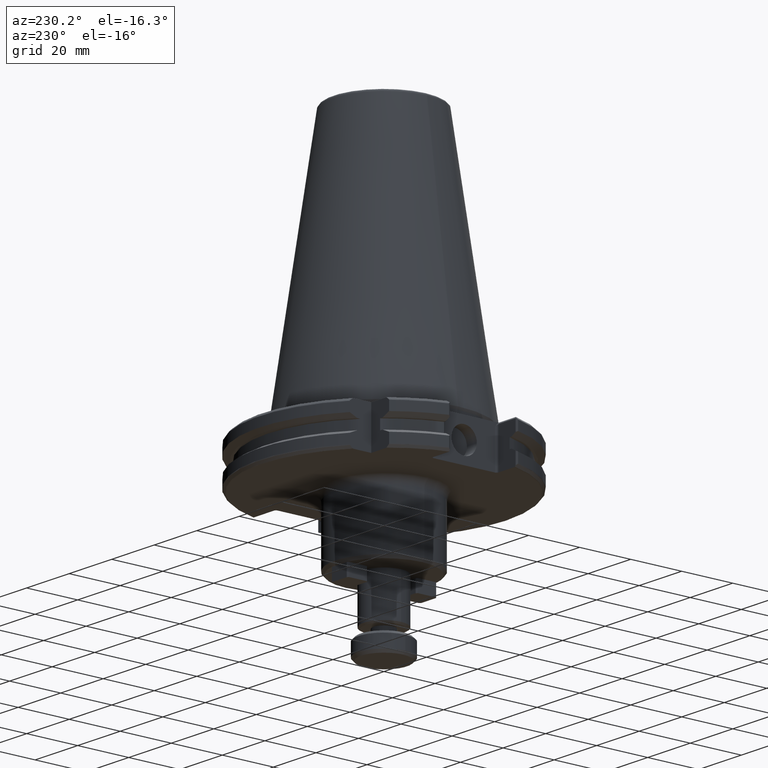
[diagram: clean part render]
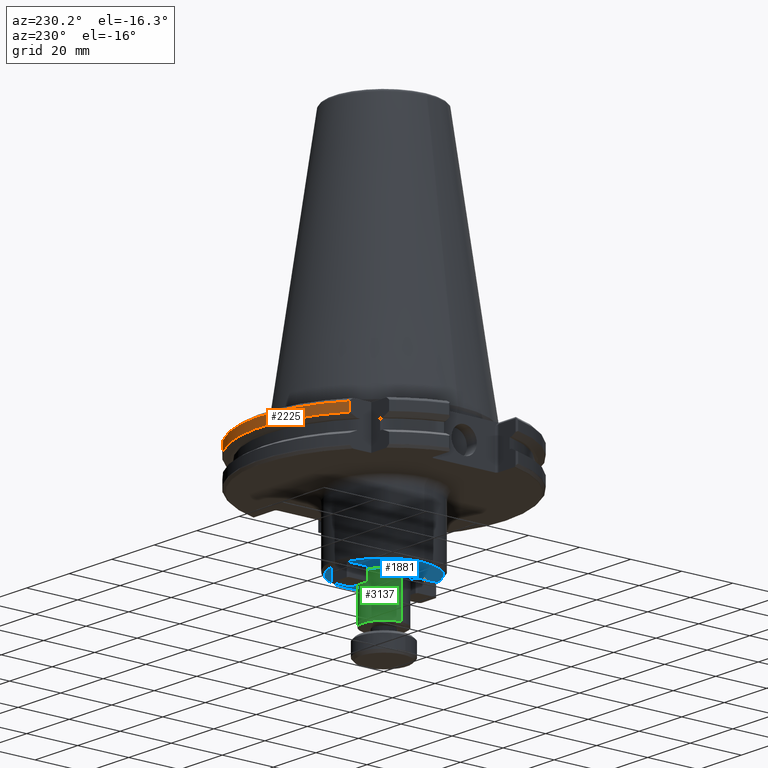
[diagram: same view with three faces highlighted in distinct colors, each labeled with its STEP entity id]
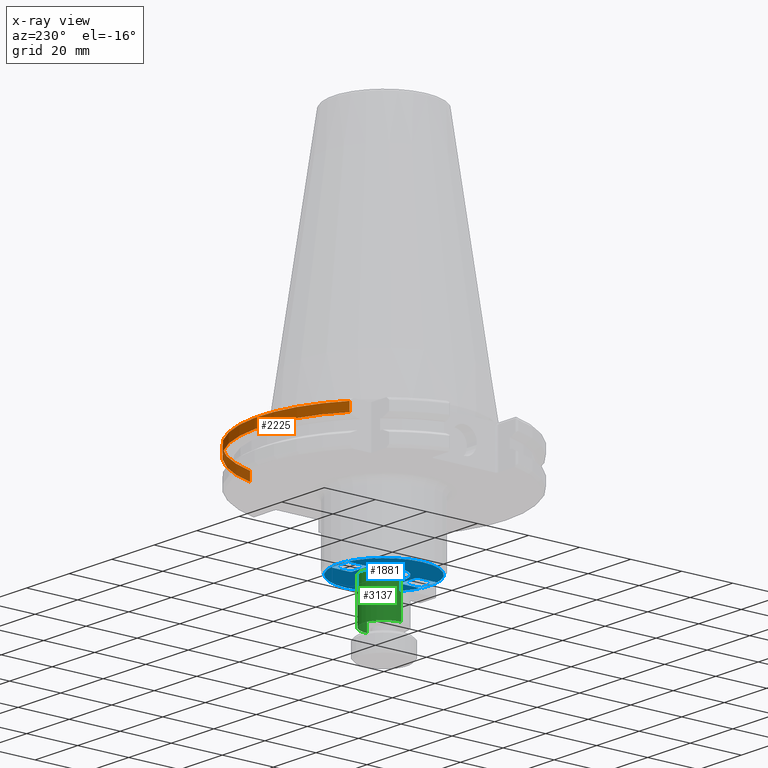
[diagram: x-ray of the same camera — body ghosted, the three highlighted faces saturated]
A machine part, auxiliary view with three faces highlighted in distinct colors.
The next image is the same camera in x-ray (body ghosted, the three faces saturated) — at least one of them is partly hidden behind the body in this view.
Their STEP definitions:

[orange] entity #2225 — the highlighted cylindrical surface (partial cylindrical patch) has radius 48.75 mm, axis along (-0, -0, 1).
#45 = CARTESIAN_POINT ( 'NONE',  ( -29.99999999999999600, 38.42606537234850400, 113.5216080541959500 ) ) ;
#65 = LINE ( 'NONE', #45, #3010 ) ;
#95 = VERTEX_POINT ( 'NONE', #1622 ) ;
#521 = AXIS2_PLACEMENT_3D ( 'NONE', #2851, #1035, #3150 ) ;
#522 = CARTESIAN_POINT ( 'NONE',  ( 0.0000000000000000000, 0.0000000000000000000, -4.365685424949236700 ) ) ;
#868 = DIRECTION ( 'NONE',  ( 1.000000000000000000, 0.0000000000000000000, 0.0000000000000000000 ) ) ;
#937 = DIRECTION ( 'NONE',  ( 0.0000000000000000000, 0.0000000000000000000, -1.000000000000000000 ) ) ;
#1009 = VERTEX_POINT ( 'NONE', #1951 ) ;
#1035 = DIRECTION ( 'NONE',  ( -0.0000000000000000000, -0.0000000000000000000, 1.000000000000000000 ) ) ;
#1087 = DIRECTION ( 'NONE',  ( -0.0000000000000000000, -0.0000000000000000000, 1.000000000000000000 ) ) ;
#1269 = EDGE_LOOP ( 'NONE', ( #2184, #2517, #3626, #2085 ) ) ;
#1325 = FACE_OUTER_BOUND ( 'NONE', #1269, .T. ) ;
#1541 = CARTESIAN_POINT ( 'NONE',  ( 46.87302845420868600, 13.39707817141269600, -4.365685424949236700 ) ) ;
#1622 = CARTESIAN_POINT ( 'NONE',  ( -29.99999999999999600, 38.42606537234850400, -7.852404735808352000 ) ) ;
#1638 = EDGE_CURVE ( 'NONE', #2613, #95, #2447, .T. ) ;
#1851 = CIRCLE ( 'NONE', #3684, 48.75000000000000000 ) ;
#1946 = CYLINDRICAL_SURFACE ( 'NONE', #3568, 48.75000000000000000 ) ;
#1951 = CARTESIAN_POINT ( 'NONE',  ( -29.99999999999999600, 38.42606537234850400, -4.365685424949235800 ) ) ;
#2085 = ORIENTED_EDGE ( 'NONE', *, *, #1638, .T. ) ;
#2184 = ORIENTED_EDGE ( 'NONE', *, *, #3299, .T. ) ;
#2225 = ADVANCED_FACE ( 'NONE', ( #1325 ), #1946, .T. ) ;
#2447 = CIRCLE ( 'NONE', #521, 48.75000000000000000 ) ;
#2517 = ORIENTED_EDGE ( 'NONE', *, *, #2784, .F. ) ;
#2527 = LINE ( 'NONE', #3039, #2654 ) ;
#2613 = VERTEX_POINT ( 'NONE', #3300 ) ;
#2654 = VECTOR ( 'NONE', #937, 1000.000000000000000 ) ;
#2674 = DIRECTION ( 'NONE',  ( -0.0000000000000000000, -0.0000000000000000000, 1.000000000000000000 ) ) ;
#2709 = EDGE_CURVE ( 'NONE', #3382, #2613, #2527, .T. ) ;
#2784 = EDGE_CURVE ( 'NONE', #3382, #1009, #1851, .T. ) ;
#2851 = CARTESIAN_POINT ( 'NONE',  ( 0.0000000000000000000, 0.0000000000000000000, -7.852404735808352000 ) ) ;
#3010 = VECTOR ( 'NONE', #3639, 1000.000000000000000 ) ;
#3039 = CARTESIAN_POINT ( 'NONE',  ( 46.87302845420868600, 13.39707817141269600, 113.5216080541959500 ) ) ;
#3150 = DIRECTION ( 'NONE',  ( 1.000000000000000000, 0.0000000000000000000, 0.0000000000000000000 ) ) ;
#3193 = DIRECTION ( 'NONE',  ( 1.000000000000000000, 0.0000000000000000000, 0.0000000000000000000 ) ) ;
#3299 = EDGE_CURVE ( 'NONE', #95, #1009, #65, .T. ) ;
#3300 = CARTESIAN_POINT ( 'NONE',  ( 46.87302845420868600, 13.39707817141269600, -7.852404735808352000 ) ) ;
#3382 = VERTEX_POINT ( 'NONE', #1541 ) ;
#3472 = CARTESIAN_POINT ( 'NONE',  ( 0.0000000000000000000, 0.0000000000000000000, 113.5216080541959500 ) ) ;
#3568 = AXIS2_PLACEMENT_3D ( 'NONE', #3472, #1087, #3193 ) ;
#3626 = ORIENTED_EDGE ( 'NONE', *, *, #2709, .T. ) ;
#3639 = DIRECTION ( 'NONE',  ( -0.0000000000000000000, -0.0000000000000000000, 1.000000000000000000 ) ) ;
#3684 = AXIS2_PLACEMENT_3D ( 'NONE', #522, #2674, #868 ) ;

[blue] entity #1881 — the highlighted planar face has unit normal (0, 0, -1).
#89 = EDGE_LOOP ( 'NONE', ( #2679, #1226, #2944, #3093, #1421, #2579, #1924, #1107 ) ) ;
#112 = FACE_OUTER_BOUND ( 'NONE', #2059, .T. ) ;
#135 = LINE ( 'NONE', #2282, #3054 ) ;
#151 = DIRECTION ( 'NONE',  ( 0.7071067811865479100, -0.7071067811865472400, -0.0000000000000000000 ) ) ;
#224 = DIRECTION ( 'NONE',  ( -0.7071067811865479100, 0.7071067811865472400, -0.0000000000000000000 ) ) ;
#226 = VERTEX_POINT ( 'NONE', #3602 ) ;
#231 = CARTESIAN_POINT ( 'NONE',  ( 4.000000000000002700, 17.50000000000000000, -45.00000000000000000 ) ) ;
#249 = DIRECTION ( 'NONE',  ( -4.336808689942016700E-016, -1.000000000000000000, 0.0000000000000000000 ) ) ;
#286 = VECTOR ( 'NONE', #2889, 1000.000000000000000 ) ;
#295 = LINE ( 'NONE', #1426, #2391 ) ;
#304 = CARTESIAN_POINT ( 'NONE',  ( -4.000000000000002700, 10.00000000000000000, -45.00000000000000000 ) ) ;
#310 = VECTOR ( 'NONE', #2668, 1000.000000000000000 ) ;
#336 = CARTESIAN_POINT ( 'NONE',  ( 4.000000000000002700, 17.50000000000000000, -45.00000000000000000 ) ) ;
#341 = FACE_BOUND ( 'NONE', #89, .T. ) ;
#370 = FACE_BOUND ( 'NONE', #3833, .T. ) ;
#378 = CARTESIAN_POINT ( 'NONE',  ( -4.000000000000002700, -17.50000000000000000, -45.00000000000000000 ) ) ;
#394 = CARTESIAN_POINT ( 'NONE',  ( -3.500000000000001800, -17.50000000000000000, -45.00000000000000000 ) ) ;
#420 = EDGE_CURVE ( 'NONE', #3836, #2226, #908, .T. ) ;
#457 = CARTESIAN_POINT ( 'NONE',  ( 4.000000000000002700, -10.00000000000000000, -45.00000000000000000 ) ) ;
#488 = CARTESIAN_POINT ( 'NONE',  ( 0.0000000000000000000, -18.00000000000000000, -45.00000000000000000 ) ) ;
#490 = VERTEX_POINT ( 'NONE', #1059 ) ;
#514 = CARTESIAN_POINT ( 'NONE',  ( -3.499999999999998700, -9.500000000000000000, -45.00000000000000000 ) ) ;
#553 = VERTEX_POINT ( 'NONE', #2809 ) ;
#558 = LINE ( 'NONE', #3758, #2361 ) ;
#633 = EDGE_CURVE ( 'NONE', #1213, #2848, #1340, .T. ) ;
#653 = CARTESIAN_POINT ( 'NONE',  ( -4.000000000000002700, 10.00000000000000000, -45.00000000000000000 ) ) ;
#656 = VERTEX_POINT ( 'NONE', #2329 ) ;
#663 = VERTEX_POINT ( 'NONE', #1220 ) ;
#687 = VERTEX_POINT ( 'NONE', #1912 ) ;
#692 = LINE ( 'NONE', #231, #2293 ) ;
#710 = EDGE_CURVE ( 'NONE', #2846, #3496, #558, .T. ) ;
#727 = VECTOR ( 'NONE', #2451, 1000.000000000000000 ) ;
#744 = EDGE_CURVE ( 'NONE', #663, #3134, #2725, .T. ) ;
#746 = EDGE_CURVE ( 'NONE', #663, #1366, #967, .T. ) ;
#747 = CARTESIAN_POINT ( 'NONE',  ( 3.499999999999974700, -9.500000000000000000, -45.00000000000000000 ) ) ;
#749 = VECTOR ( 'NONE', #3651, 1000.000000000000000 ) ;
#754 = VECTOR ( 'NONE', #224, 1000.000000000000000 ) ;
#774 = CARTESIAN_POINT ( 'NONE',  ( -4.000000000000002700, 16.99999999999997500, -45.00000000000000000 ) ) ;
#830 = PLANE ( 'NONE',  #1162 ) ;
#844 = CARTESIAN_POINT ( 'NONE',  ( 8.000000000000000000, 0.0000000000000000000, -45.00000000000000000 ) ) ;
#855 = VERTEX_POINT ( 'NONE', #2687 ) ;
#887 = VECTOR ( 'NONE', #3546, 1000.000000000000100 ) ;
#908 = CIRCLE ( 'NONE', #1451, 18.00000000000000000 ) ;
#910 = ORIENTED_EDGE ( 'NONE', *, *, #633, .T. ) ;
#931 = DIRECTION ( 'NONE',  ( -0.0000000000000000000, -0.0000000000000000000, 1.000000000000000000 ) ) ;
#967 = LINE ( 'NONE', #336, #727 ) ;
#974 = DIRECTION ( 'NONE',  ( -1.000000000000000000, -0.0000000000000000000, -0.0000000000000000000 ) ) ;
#1059 = CARTESIAN_POINT ( 'NONE',  ( 4.000000000000002700, -10.00000000000000000, -45.00000000000000000 ) ) ;
#1060 = VERTEX_POINT ( 'NONE', #3440 ) ;
#1089 = ORIENTED_EDGE ( 'NONE', *, *, #1237, .T. ) ;
#1103 = CARTESIAN_POINT ( 'NONE',  ( 3.499999999999998700, 9.500000000000000000, -45.00000000000000000 ) ) ;
#1104 = ORIENTED_EDGE ( 'NONE', *, *, #2997, .F. ) ;
#1107 = ORIENTED_EDGE ( 'NONE', *, *, #1474, .T. ) ;
#1142 = CARTESIAN_POINT ( 'NONE',  ( 3.500000000000002200, -17.50000000000000000, -45.00000000000000000 ) ) ;
#1162 = AXIS2_PLACEMENT_3D ( 'NONE', #488, #3815, #2932 ) ;
#1213 = VERTEX_POINT ( 'NONE', #844 ) ;
#1220 = CARTESIAN_POINT ( 'NONE',  ( -3.500000000000002200, 17.50000000000000000, -45.00000000000000000 ) ) ;
#1221 = EDGE_CURVE ( 'NONE', #3603, #226, #2267, .T. ) ;
#1226 = ORIENTED_EDGE ( 'NONE', *, *, #2248, .T. ) ;
#1237 = EDGE_CURVE ( 'NONE', #656, #1060, #1871, .T. ) ;
#1271 = VECTOR ( 'NONE', #2199, 1000.000000000000000 ) ;
#1285 = VECTOR ( 'NONE', #2783, 1000.000000000000000 ) ;
#1295 = EDGE_LOOP ( 'NONE', ( #1718, #1089, #1648, #1419, #3287, #1525, #1104, #2258 ) ) ;
#1334 = VERTEX_POINT ( 'NONE', #2991 ) ;
#1340 = CIRCLE ( 'NONE', #2005, 8.000000000000000000 ) ;
#1366 = VERTEX_POINT ( 'NONE', #2145 ) ;
#1419 = ORIENTED_EDGE ( 'NONE', *, *, #710, .T. ) ;
#1421 = ORIENTED_EDGE ( 'NONE', *, *, #746, .F. ) ;
#1426 = CARTESIAN_POINT ( 'NONE',  ( -4.000000000000002700, -17.50000000000000000, -45.00000000000000000 ) ) ;
#1451 = AXIS2_PLACEMENT_3D ( 'NONE', #3132, #2382, #2971 ) ;
#1457 = AXIS2_PLACEMENT_3D ( 'NONE', #2739, #931, #3031 ) ;
#1474 = EDGE_CURVE ( 'NONE', #3251, #1334, #3497, .T. ) ;
#1525 = ORIENTED_EDGE ( 'NONE', *, *, #1221, .T. ) ;
#1530 = EDGE_CURVE ( 'NONE', #3603, #3496, #2509, .T. ) ;
#1640 = DIRECTION ( 'NONE',  ( -0.0000000000000000000, -0.0000000000000000000, 1.000000000000000000 ) ) ;
#1648 = ORIENTED_EDGE ( 'NONE', *, *, #1925, .F. ) ;
#1701 = LINE ( 'NONE', #1103, #3347 ) ;
#1718 = ORIENTED_EDGE ( 'NONE', *, *, #3550, .F. ) ;
#1777 = ORIENTED_EDGE ( 'NONE', *, *, #420, .F. ) ;
#1871 = LINE ( 'NONE', #514, #887 ) ;
#1881 = ADVANCED_FACE ( 'NONE', ( #3062, #370, #112, #341 ), #830, .T. ) ;
#1912 = CARTESIAN_POINT ( 'NONE',  ( 3.499999999999998700, 9.500000000000000000, -45.00000000000000000 ) ) ;
#1924 = ORIENTED_EDGE ( 'NONE', *, *, #3403, .F. ) ;
#1925 = EDGE_CURVE ( 'NONE', #2846, #1060, #295, .T. ) ;
#1974 = CARTESIAN_POINT ( 'NONE',  ( 3.999999999999999100, 9.500000000000000000, -45.00000000000000000 ) ) ;
#1978 = ORIENTED_EDGE ( 'NONE', *, *, #2123, .F. ) ;
#1987 = CARTESIAN_POINT ( 'NONE',  ( 3.500000000000002200, -17.50000000000000000, -45.00000000000000000 ) ) ;
#2005 = AXIS2_PLACEMENT_3D ( 'NONE', #2362, #3570, #2588 ) ;
#2059 = EDGE_LOOP ( 'NONE', ( #1978, #1777 ) ) ;
#2067 = CARTESIAN_POINT ( 'NONE',  ( 4.000000000000002700, 17.00000000000000000, -45.00000000000000000 ) ) ;
#2123 = EDGE_CURVE ( 'NONE', #2226, #3836, #2701, .T. ) ;
#2145 = CARTESIAN_POINT ( 'NONE',  ( 3.500000000000001800, 17.50000000000000000, -45.00000000000000000 ) ) ;
#2147 = VECTOR ( 'NONE', #2295, 1000.000000000000000 ) ;
#2199 = DIRECTION ( 'NONE',  ( 0.0000000000000000000, 1.000000000000000000, -0.0000000000000000000 ) ) ;
#2219 = EDGE_CURVE ( 'NONE', #490, #3559, #3863, .T. ) ;
#2226 = VERTEX_POINT ( 'NONE', #3788 ) ;
#2248 = EDGE_CURVE ( 'NONE', #687, #855, #1701, .T. ) ;
#2258 = ORIENTED_EDGE ( 'NONE', *, *, #2219, .T. ) ;
#2267 = LINE ( 'NONE', #1142, #310 ) ;
#2282 = CARTESIAN_POINT ( 'NONE',  ( -3.999999999999999100, -9.500000000000000000, -45.00000000000000000 ) ) ;
#2293 = VECTOR ( 'NONE', #249, 1000.000000000000000 ) ;
#2295 = DIRECTION ( 'NONE',  ( -1.000000000000000000, 0.0000000000000000000, 0.0000000000000000000 ) ) ;
#2329 = CARTESIAN_POINT ( 'NONE',  ( -3.499999999999998700, -9.500000000000000000, -45.00000000000000000 ) ) ;
#2361 = VECTOR ( 'NONE', #151, 1000.000000000000000 ) ;
#2362 = CARTESIAN_POINT ( 'NONE',  ( 0.0000000000000000000, 0.0000000000000000000, -45.00000000000000000 ) ) ;
#2364 = VECTOR ( 'NONE', #3166, 1000.000000000000000 ) ;
#2382 = DIRECTION ( 'NONE',  ( -0.0000000000000000000, -0.0000000000000000000, 1.000000000000000000 ) ) ;
#2391 = VECTOR ( 'NONE', #3242, 1000.000000000000000 ) ;
#2451 = DIRECTION ( 'NONE',  ( 1.000000000000000000, 0.0000000000000000000, -0.0000000000000000000 ) ) ;
#2474 = EDGE_CURVE ( 'NONE', #553, #1366, #2496, .T. ) ;
#2496 = LINE ( 'NONE', #2067, #754 ) ;
#2509 = LINE ( 'NONE', #378, #3837 ) ;
#2579 = ORIENTED_EDGE ( 'NONE', *, *, #744, .T. ) ;
#2583 = CARTESIAN_POINT ( 'NONE',  ( -3.500000000000002200, 17.50000000000000000, -45.00000000000000000 ) ) ;
#2588 = DIRECTION ( 'NONE',  ( 1.000000000000000000, 0.0000000000000000000, 0.0000000000000000000 ) ) ;
#2592 = AXIS2_PLACEMENT_3D ( 'NONE', #3444, #1640, #3738 ) ;
#2604 = LINE ( 'NONE', #3030, #749 ) ;
#2668 = DIRECTION ( 'NONE',  ( 0.7071067811865279200, 0.7071067811865672200, -0.0000000000000000000 ) ) ;
#2679 = ORIENTED_EDGE ( 'NONE', *, *, #3567, .F. ) ;
#2687 = CARTESIAN_POINT ( 'NONE',  ( 3.999999999999999100, 10.00000000000000000, -45.00000000000000000 ) ) ;
#2701 = CIRCLE ( 'NONE', #2592, 18.00000000000000000 ) ;
#2719 = CARTESIAN_POINT ( 'NONE',  ( -18.00000000000000000, 2.265596578422603000E-015, -45.00000000000000000 ) ) ;
#2725 = LINE ( 'NONE', #2583, #2364 ) ;
#2739 = CARTESIAN_POINT ( 'NONE',  ( 0.0000000000000000000, 0.0000000000000000000, -45.00000000000000000 ) ) ;
#2742 = LINE ( 'NONE', #3064, #1271 ) ;
#2783 = DIRECTION ( 'NONE',  ( 0.7071067811865672200, -0.7071067811865279200, -0.0000000000000000000 ) ) ;
#2809 = CARTESIAN_POINT ( 'NONE',  ( 4.000000000000002700, 17.00000000000000000, -45.00000000000000000 ) ) ;
#2831 = CIRCLE ( 'NONE', #1457, 8.000000000000000000 ) ;
#2846 = VERTEX_POINT ( 'NONE', #3274 ) ;
#2848 = VERTEX_POINT ( 'NONE', #3572 ) ;
#2889 = DIRECTION ( 'NONE',  ( -0.7071067811865672200, 0.7071067811865279200, -0.0000000000000000000 ) ) ;
#2932 = DIRECTION ( 'NONE',  ( -1.000000000000000000, 0.0000000000000000000, -0.0000000000000000000 ) ) ;
#2944 = ORIENTED_EDGE ( 'NONE', *, *, #3760, .F. ) ;
#2971 = DIRECTION ( 'NONE',  ( 1.000000000000000000, 0.0000000000000000000, 0.0000000000000000000 ) ) ;
#2991 = CARTESIAN_POINT ( 'NONE',  ( -3.499999999999974700, 9.500000000000000000, -45.00000000000000000 ) ) ;
#2997 = EDGE_CURVE ( 'NONE', #490, #226, #2604, .T. ) ;
#3030 = CARTESIAN_POINT ( 'NONE',  ( 4.000000000000002700, -17.50000000000000000, -45.00000000000000000 ) ) ;
#3031 = DIRECTION ( 'NONE',  ( 1.000000000000000000, 0.0000000000000000000, 0.0000000000000000000 ) ) ;
#3054 = VECTOR ( 'NONE', #3149, 1000.000000000000000 ) ;
#3062 = FACE_BOUND ( 'NONE', #1295, .T. ) ;
#3064 = CARTESIAN_POINT ( 'NONE',  ( -4.000000000000002700, 17.50000000000000000, -45.00000000000000000 ) ) ;
#3072 = ORIENTED_EDGE ( 'NONE', *, *, #3266, .T. ) ;
#3093 = ORIENTED_EDGE ( 'NONE', *, *, #2474, .T. ) ;
#3132 = CARTESIAN_POINT ( 'NONE',  ( 0.0000000000000000000, 0.0000000000000000000, -45.00000000000000000 ) ) ;
#3134 = VERTEX_POINT ( 'NONE', #774 ) ;
#3149 = DIRECTION ( 'NONE',  ( 1.000000000000000000, 0.0000000000000000000, 0.0000000000000000000 ) ) ;
#3166 = DIRECTION ( 'NONE',  ( -0.7071067811865279200, -0.7071067811865672200, -0.0000000000000000000 ) ) ;
#3208 = DIRECTION ( 'NONE',  ( 0.7071067811865474600, 0.7071067811865474600, -0.0000000000000000000 ) ) ;
#3242 = DIRECTION ( 'NONE',  ( 4.336808689942016700E-016, 1.000000000000000000, 0.0000000000000000000 ) ) ;
#3251 = VERTEX_POINT ( 'NONE', #304 ) ;
#3266 = EDGE_CURVE ( 'NONE', #2848, #1213, #2831, .T. ) ;
#3274 = CARTESIAN_POINT ( 'NONE',  ( -4.000000000000002700, -17.00000000000000000, -45.00000000000000000 ) ) ;
#3287 = ORIENTED_EDGE ( 'NONE', *, *, #1530, .F. ) ;
#3347 = VECTOR ( 'NONE', #3208, 1000.000000000000100 ) ;
#3377 = LINE ( 'NONE', #1974, #2147 ) ;
#3403 = EDGE_CURVE ( 'NONE', #3251, #3134, #2742, .T. ) ;
#3440 = CARTESIAN_POINT ( 'NONE',  ( -3.999999999999999100, -10.00000000000000000, -45.00000000000000000 ) ) ;
#3444 = CARTESIAN_POINT ( 'NONE',  ( 0.0000000000000000000, 0.0000000000000000000, -45.00000000000000000 ) ) ;
#3496 = VERTEX_POINT ( 'NONE', #394 ) ;
#3497 = LINE ( 'NONE', #653, #1285 ) ;
#3546 = DIRECTION ( 'NONE',  ( -0.7071067811865474600, -0.7071067811865474600, -0.0000000000000000000 ) ) ;
#3550 = EDGE_CURVE ( 'NONE', #656, #3559, #135, .T. ) ;
#3559 = VERTEX_POINT ( 'NONE', #747 ) ;
#3567 = EDGE_CURVE ( 'NONE', #687, #1334, #3377, .T. ) ;
#3570 = DIRECTION ( 'NONE',  ( -0.0000000000000000000, -0.0000000000000000000, 1.000000000000000000 ) ) ;
#3572 = CARTESIAN_POINT ( 'NONE',  ( -8.000000000000000000, 9.797174393178825700E-016, -45.00000000000000000 ) ) ;
#3602 = CARTESIAN_POINT ( 'NONE',  ( 4.000000000000002700, -16.99999999999997500, -45.00000000000000000 ) ) ;
#3603 = VERTEX_POINT ( 'NONE', #1987 ) ;
#3651 = DIRECTION ( 'NONE',  ( -0.0000000000000000000, -1.000000000000000000, -0.0000000000000000000 ) ) ;
#3738 = DIRECTION ( 'NONE',  ( 1.000000000000000000, 0.0000000000000000000, 0.0000000000000000000 ) ) ;
#3758 = CARTESIAN_POINT ( 'NONE',  ( -4.000000000000002700, -17.00000000000000000, -45.00000000000000000 ) ) ;
#3760 = EDGE_CURVE ( 'NONE', #553, #855, #692, .T. ) ;
#3788 = CARTESIAN_POINT ( 'NONE',  ( 18.00000000000000000, 0.0000000000000000000, -45.00000000000000000 ) ) ;
#3815 = DIRECTION ( 'NONE',  ( 0.0000000000000000000, 0.0000000000000000000, -1.000000000000000000 ) ) ;
#3833 = EDGE_LOOP ( 'NONE', ( #910, #3072 ) ) ;
#3836 = VERTEX_POINT ( 'NONE', #2719 ) ;
#3837 = VECTOR ( 'NONE', #974, 1000.000000000000000 ) ;
#3863 = LINE ( 'NONE', #457, #286 ) ;

[green] entity #3137 — the highlighted cylindrical surface (edge-blend (fillet) strip) has radius 8 mm, axis along (-0, -0, 1).
#50 = DIRECTION ( 'NONE',  ( 1.000000000000000000, 0.0000000000000000000, 0.0000000000000000000 ) ) ;
#130 = DIRECTION ( 'NONE',  ( -0.0000000000000000000, -0.0000000000000000000, 1.000000000000000000 ) ) ;
#187 = LINE ( 'NONE', #1187, #1417 ) ;
#292 = CARTESIAN_POINT ( 'NONE',  ( -8.000000000000000000, 9.797174393178825700E-016, -61.50925227118882100 ) ) ;
#446 = EDGE_CURVE ( 'NONE', #3806, #1213, #187, .T. ) ;
#451 = LINE ( 'NONE', #530, #1368 ) ;
#460 = CARTESIAN_POINT ( 'NONE',  ( 0.0000000000000000000, 0.0000000000000000000, 0.0000000000000000000 ) ) ;
#530 = CARTESIAN_POINT ( 'NONE',  ( -8.000000000000000000, 9.797174393178825700E-016, 0.0000000000000000000 ) ) ;
#540 = FACE_OUTER_BOUND ( 'NONE', #2425, .T. ) ;
#633 = EDGE_CURVE ( 'NONE', #1213, #2848, #1340, .T. ) ;
#730 = ORIENTED_EDGE ( 'NONE', *, *, #446, .F. ) ;
#790 = DIRECTION ( 'NONE',  ( 1.000000000000000000, 0.0000000000000000000, 0.0000000000000000000 ) ) ;
#844 = CARTESIAN_POINT ( 'NONE',  ( 8.000000000000000000, 0.0000000000000000000, -45.00000000000000000 ) ) ;
#1187 = CARTESIAN_POINT ( 'NONE',  ( 8.000000000000000000, 0.0000000000000000000, 0.0000000000000000000 ) ) ;
#1188 = CYLINDRICAL_SURFACE ( 'NONE', #3734, 8.000000000000000000 ) ;
#1213 = VERTEX_POINT ( 'NONE', #844 ) ;
#1340 = CIRCLE ( 'NONE', #2005, 8.000000000000000000 ) ;
#1368 = VECTOR ( 'NONE', #2410, 1000.000000000000000 ) ;
#1406 = EDGE_CURVE ( 'NONE', #3806, #3230, #2776, .T. ) ;
#1417 = VECTOR ( 'NONE', #130, 1000.000000000000000 ) ;
#1673 = DIRECTION ( 'NONE',  ( -0.0000000000000000000, -0.0000000000000000000, 1.000000000000000000 ) ) ;
#1836 = DIRECTION ( 'NONE',  ( -0.0000000000000000000, -0.0000000000000000000, 1.000000000000000000 ) ) ;
#1842 = AXIS2_PLACEMENT_3D ( 'NONE', #3632, #1836, #50 ) ;
#2005 = AXIS2_PLACEMENT_3D ( 'NONE', #2362, #3570, #2588 ) ;
#2237 = ORIENTED_EDGE ( 'NONE', *, *, #633, .F. ) ;
#2362 = CARTESIAN_POINT ( 'NONE',  ( 0.0000000000000000000, 0.0000000000000000000, -45.00000000000000000 ) ) ;
#2389 = CARTESIAN_POINT ( 'NONE',  ( 8.000000000000000000, 0.0000000000000000000, -61.50925227118882100 ) ) ;
#2410 = DIRECTION ( 'NONE',  ( -0.0000000000000000000, -0.0000000000000000000, 1.000000000000000000 ) ) ;
#2425 = EDGE_LOOP ( 'NONE', ( #2744, #2538, #2237, #730 ) ) ;
#2538 = ORIENTED_EDGE ( 'NONE', *, *, #2562, .T. ) ;
#2562 = EDGE_CURVE ( 'NONE', #3230, #2848, #451, .T. ) ;
#2588 = DIRECTION ( 'NONE',  ( 1.000000000000000000, 0.0000000000000000000, 0.0000000000000000000 ) ) ;
#2744 = ORIENTED_EDGE ( 'NONE', *, *, #1406, .T. ) ;
#2776 = CIRCLE ( 'NONE', #1842, 8.000000000000000000 ) ;
#2848 = VERTEX_POINT ( 'NONE', #3572 ) ;
#3137 = ADVANCED_FACE ( 'NONE', ( #540 ), #1188, .T. ) ;
#3230 = VERTEX_POINT ( 'NONE', #292 ) ;
#3570 = DIRECTION ( 'NONE',  ( -0.0000000000000000000, -0.0000000000000000000, 1.000000000000000000 ) ) ;
#3572 = CARTESIAN_POINT ( 'NONE',  ( -8.000000000000000000, 9.797174393178825700E-016, -45.00000000000000000 ) ) ;
#3632 = CARTESIAN_POINT ( 'NONE',  ( 0.0000000000000000000, 0.0000000000000000000, -61.50925227118882100 ) ) ;
#3734 = AXIS2_PLACEMENT_3D ( 'NONE', #460, #1673, #790 ) ;
#3806 = VERTEX_POINT ( 'NONE', #2389 ) ;